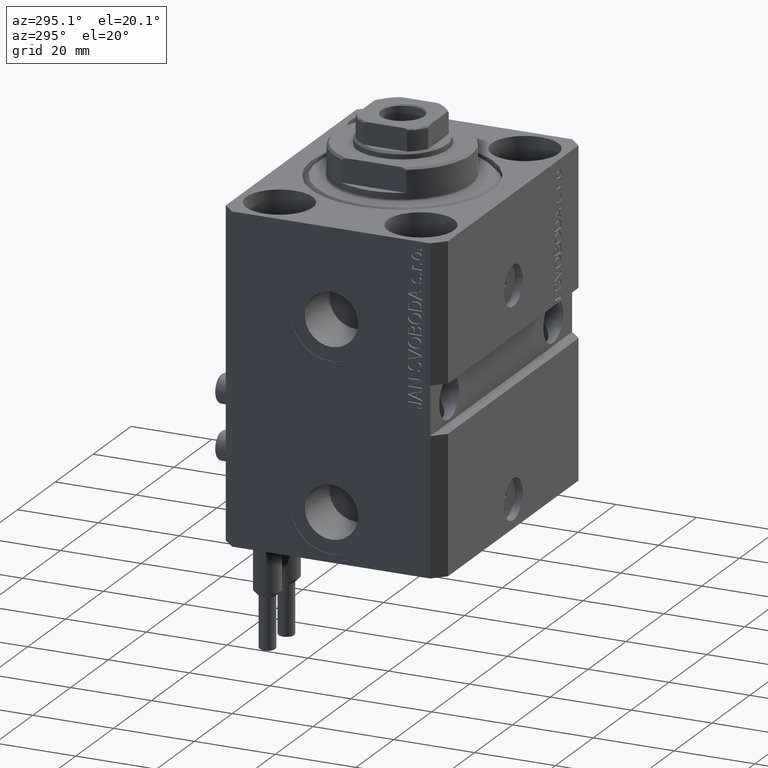
[diagram: clean part render]
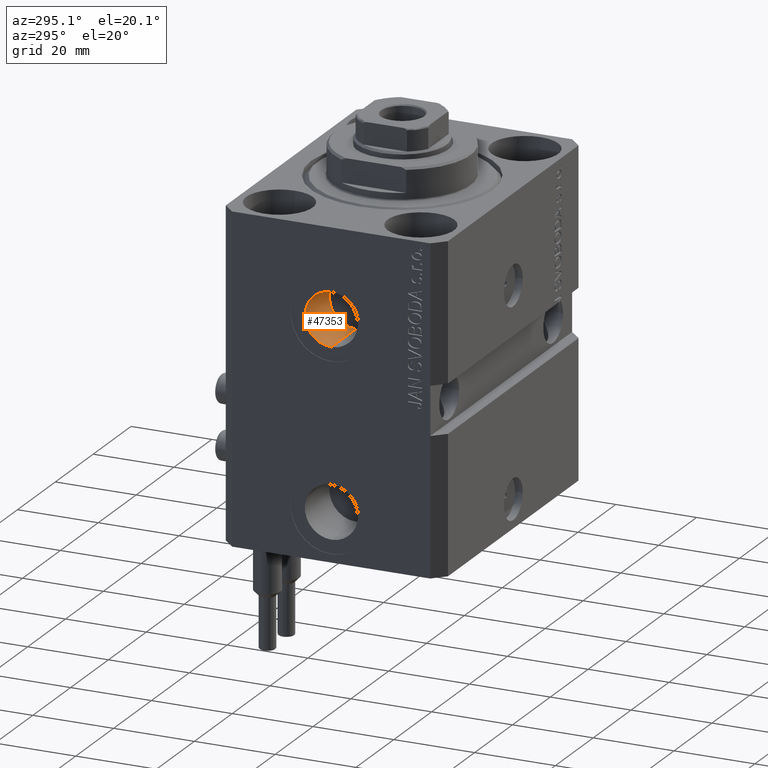
[diagram: same view with one face highlighted and labeled with its STEP entity id]
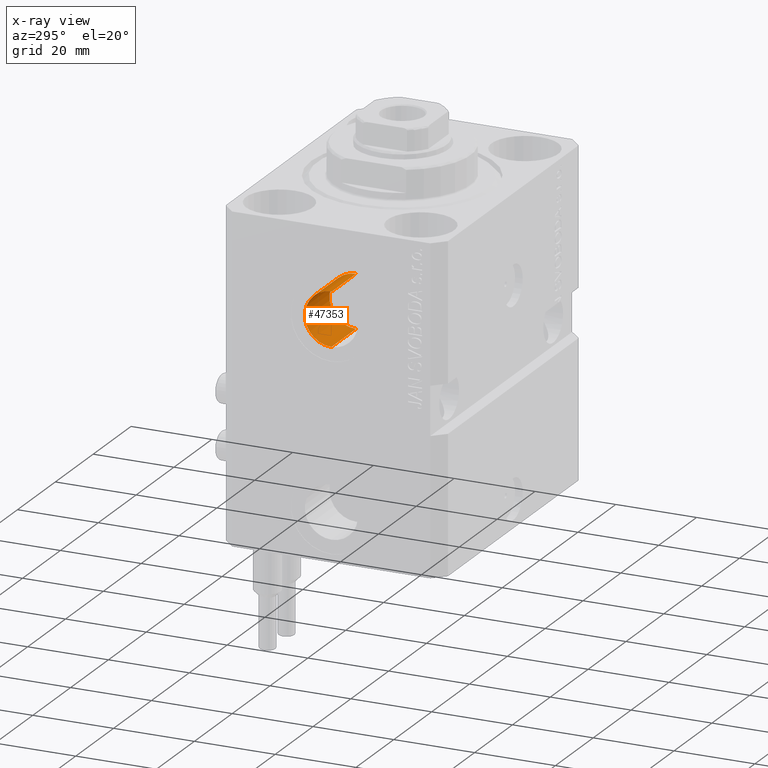
[diagram: x-ray of the same camera — body ghosted, the highlighted face saturated]
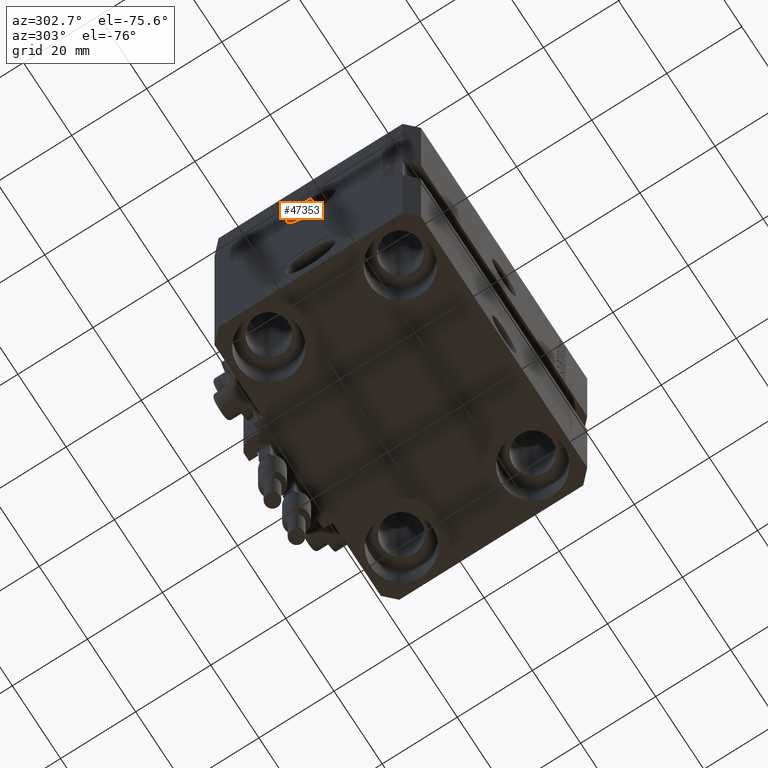
[diagram: same view with one face highlighted and labeled with its STEP entity id]
A machine part, auxiliary view. The second image highlights one B-rep face of the part: STEP entity #47353.
The next image is the same camera in x-ray: the body ghosted, the highlighted face saturated — about 0% of this face is hidden behind the body in this view.
A second angle (auxiliary view) of the same face is appended — the face is thin or edge-on in the first view.
In plain terms, the highlighted cylindrical surface (edge-blend (fillet) strip) has radius 6.58 mm, axis along (-1, -0, -0).
Its self-contained STEP definition (entity closure, byte-faithful):
#247 = AXIS2_PLACEMENT_3D ( 'NONE', #36087, #17823, #2492 ) ;
#310 = EDGE_CURVE ( 'NONE', #28633, #25674, #35930, .T. ) ;
#1823 = FACE_OUTER_BOUND ( 'NONE', #36843, .T. ) ;
#2492 = DIRECTION ( 'NONE',  ( 0.000000000000000000, 0.000000000000000000, 1.000000000000000000 ) ) ;
#5561 = ORIENTED_EDGE ( 'NONE', *, *, #34395, .T. ) ;
#11081 = CARTESIAN_POINT ( 'NONE',  ( -24.39999999999999147, 0.000000000000000000, -15.41999999999999993 ) ) ;
#11300 = DIRECTION ( 'NONE',  ( -1.000000000000000000, -0.000000000000000000, -0.000000000000000000 ) ) ;
#15380 = AXIS2_PLACEMENT_3D ( 'NONE', #16687, #16445, #31301 ) ;
#15426 = EDGE_CURVE ( 'NONE', #28633, #44747, #17018, .T. ) ;
#15443 = CARTESIAN_POINT ( 'NONE',  ( -24.39999999999999147, 8.058175938389580558E-16, -28.57999999999999829 ) ) ;
#16445 = DIRECTION ( 'NONE',  ( -1.000000000000000000, -0.000000000000000000, -0.000000000000000000 ) ) ;
#16687 = CARTESIAN_POINT ( 'NONE',  ( -24.39999999999999147, 0.000000000000000000, -22.00000000000000000 ) ) ;
#17018 = LINE ( 'NONE', #32107, #36376 ) ;
#17201 = CARTESIAN_POINT ( 'NONE',  ( -24.39999999999999147, 8.058175938389579572E-16, -28.57999999999999829 ) ) ;
#17823 = DIRECTION ( 'NONE',  ( -1.000000000000000000, 0.000000000000000000, 0.000000000000000000 ) ) ;
#21315 = DIRECTION ( 'NONE',  ( -1.000000000000000000, 0.000000000000000000, 0.000000000000000000 ) ) ;
#21785 = CARTESIAN_POINT ( 'NONE',  ( -24.39999999999999147, 0.000000000000000000, -22.00000000000000000 ) ) ;
#23630 = VERTEX_POINT ( 'NONE', #36632 ) ;
#23806 = EDGE_CURVE ( 'NONE', #25674, #23630, #37114, .T. ) ;
#25674 = VERTEX_POINT ( 'NONE', #17201 ) ;
#25899 = CARTESIAN_POINT ( 'NONE',  ( -37.39999999999999147, 0.000000000000000000, -15.41999999999999993 ) ) ;
#27228 = VECTOR ( 'NONE', #11300, 1000.000000000000000 ) ;
#28633 = VERTEX_POINT ( 'NONE', #11081 ) ;
#28855 = DIRECTION ( 'NONE',  ( 0.000000000000000000, 0.000000000000000000, 1.000000000000000000 ) ) ;
#31301 = DIRECTION ( 'NONE',  ( 0.000000000000000000, 0.000000000000000000, 1.000000000000000000 ) ) ;
#32107 = CARTESIAN_POINT ( 'NONE',  ( -24.39999999999999147, 0.000000000000000000, -15.41999999999999993 ) ) ;
#34031 = ORIENTED_EDGE ( 'NONE', *, *, #15426, .T. ) ;
#34313 = ORIENTED_EDGE ( 'NONE', *, *, #310, .F. ) ;
#34395 = EDGE_CURVE ( 'NONE', #44747, #23630, #34462, .T. ) ;
#34462 = CIRCLE ( 'NONE', #247, 6.579999999999999183 ) ;
#35930 = CIRCLE ( 'NONE', #42144, 6.579999999999999183 ) ;
#36087 = CARTESIAN_POINT ( 'NONE',  ( -37.39999999999999147, 0.000000000000000000, -22.00000000000000000 ) ) ;
#36376 = VECTOR ( 'NONE', #46725, 1000.000000000000000 ) ;
#36632 = CARTESIAN_POINT ( 'NONE',  ( -37.39999999999999147, 8.058175938389579572E-16, -28.57999999999999829 ) ) ;
#36843 = EDGE_LOOP ( 'NONE', ( #46081, #34313, #34031, #5561 ) ) ;
#37114 = LINE ( 'NONE', #15443, #27228 ) ;
#42144 = AXIS2_PLACEMENT_3D ( 'NONE', #21785, #21315, #28855 ) ;
#44747 = VERTEX_POINT ( 'NONE', #25899 ) ;
#45910 = CYLINDRICAL_SURFACE ( 'NONE', #15380, 6.579999999999999183 ) ;
#46081 = ORIENTED_EDGE ( 'NONE', *, *, #23806, .F. ) ;
#46725 = DIRECTION ( 'NONE',  ( -1.000000000000000000, -0.000000000000000000, -0.000000000000000000 ) ) ;
#47353 = ADVANCED_FACE ( 'NONE', ( #1823 ), #45910, .F. ) ;